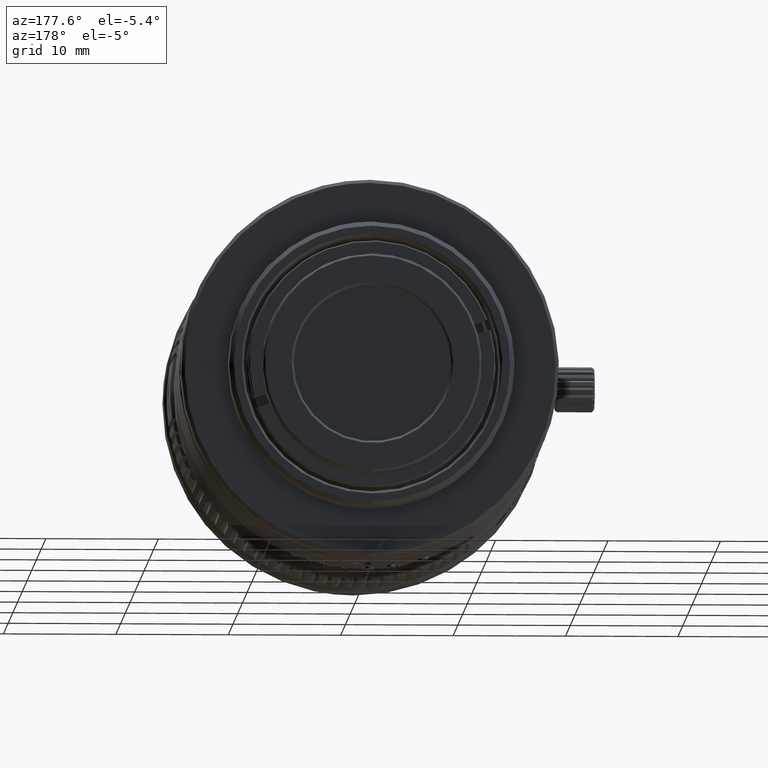
[diagram: clean part render]
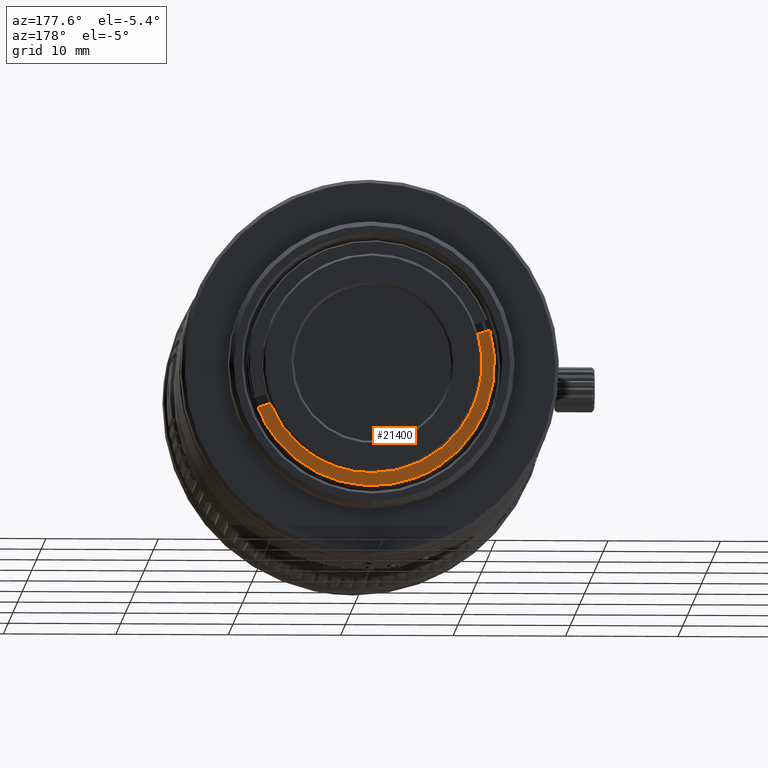
[diagram: same view with one face highlighted and labeled with its STEP entity id]
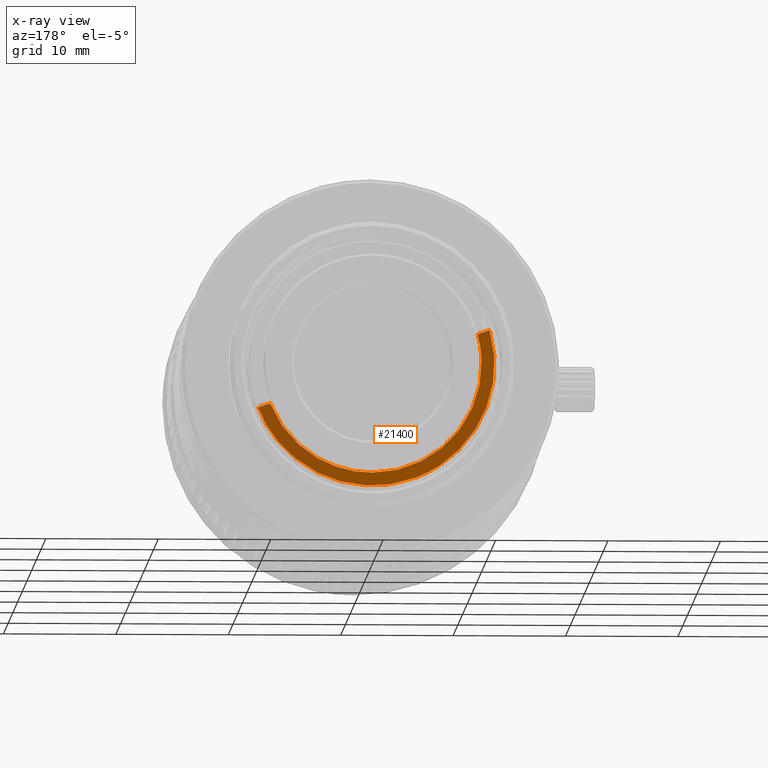
[diagram: x-ray of the same camera — body ghosted, the highlighted face saturated]
A machine part, auxiliary view. The second image highlights one B-rep face of the part: STEP entity #21400.
The next image is the same camera in x-ray: the body ghosted, the highlighted face saturated — about 0% of this face is hidden behind the body in this view.
In plain terms, the highlighted planar face has unit normal (0, -1, 0).
Its self-contained STEP definition (entity closure, byte-faithful):
#152 = ORIENTED_EDGE ( 'NONE', *, *, #44878, .F. ) ;
#742 = ORIENTED_EDGE ( 'NONE', *, *, #52429, .F. ) ;
#1699 = CARTESIAN_POINT ( 'NONE',  ( 6.278458765525088303, 26.44234705645979844, -7.522156299426887571 ) ) ;
#2143 = CARTESIAN_POINT ( 'NONE',  ( -9.720288894856926376, 26.44234705645979844, -1.068153695279417725 ) ) ;
#2158 = CARTESIAN_POINT ( 'NONE',  ( 7.086082948668000370, 26.44234705646000094, -14.37684237892000105 ) ) ;
#2415 = CARTESIAN_POINT ( 'NONE',  ( -9.586710724844072828, 26.44234705645980199, 1.928716151842359450 ) ) ;
#2970 = CARTESIAN_POINT ( 'NONE',  ( -7.322571924300240731, 26.44234705645980554, -6.481119419488264199 ) ) ;
#2994 = CARTESIAN_POINT ( 'NONE',  ( 5.857348800087792462, 26.44234705645951067, -9.296236353577235434 ) ) ;
#3096 = EDGE_CURVE ( 'NONE', #11880, #34706, #41599, .T. ) ;
#3539 = CARTESIAN_POINT ( 'NONE',  ( -8.139471871176422013, 26.44234705645952133, -7.380890391124293792 ) ) ;
#6196 = CARTESIAN_POINT ( 'NONE',  ( -2.960120124351137694, 26.44234705645979489, -9.320013807158732178 ) ) ;
#6847 = CARTESIAN_POINT ( 'NONE',  ( 9.062000991359209223, 26.44234705645995120, -3.597587807489885048 ) ) ;
#7304 = CARTESIAN_POINT ( 'NONE',  ( 9.648381725139151044, 26.44234705645951422, -5.257116642558131936 ) ) ;
#7862 = CARTESIAN_POINT ( 'NONE',  ( 9.425496927680798720, 26.44234705646000805, -3.720719138948073379 ) ) ;
#7938 = EDGE_CURVE ( 'NONE', #42194, #8674, #19050, .T. ) ;
#7975 = CARTESIAN_POINT ( 'NONE',  ( 10.15248880032505951, 26.44234705645985173, -3.966981801861470203 ) ) ;
#8102 = CARTESIAN_POINT ( 'NONE',  ( -10.85707245194149451, 26.44234705645951067, 1.688941408325846050 ) ) ;
#8674 = VERTEX_POINT ( 'NONE', #7975 ) ;
#10541 = CARTESIAN_POINT ( 'NONE',  ( -9.706933850125539109, 26.44234705645979844, 1.183386557936571215 ) ) ;
#11096 = CARTESIAN_POINT ( 'NONE',  ( -3.670305091538421216, 26.44234705645980554, -9.063874946800908106 ) ) ;
#11159 = EDGE_CURVE ( 'NONE', #34706, #48457, #23667, .T. ) ;
#11880 = VERTEX_POINT ( 'NONE', #20692 ) ;
#12069 = B_SPLINE_CURVE_WITH_KNOTS ( 'NONE', 3,
 ( #16056, #37511, #7862, #12759 ),
 .UNSPECIFIED., .F., .F.,
 ( 4, 4 ),
 ( 0.000000000000000000, 1.000000000000000000 ),
 .UNSPECIFIED. ) ;
#12206 = CARTESIAN_POINT ( 'NONE',  ( -2.185194438996142630, 26.44234705645951777, -10.76816932311347941 ) ) ;
#12257 = ORIENTED_EDGE ( 'NONE', *, *, #3096, .F. ) ;
#12759 = CARTESIAN_POINT ( 'NONE',  ( 9.062000991359209223, 26.44234705645995120, -3.597587807489885048 ) ) ;
#14200 = CARTESIAN_POINT ( 'NONE',  ( 8.704376370655916517, 26.44234705645979489, -4.498412148900241547 ) ) ;
#14362 = CARTESIAN_POINT ( 'NONE',  ( -5.646104214394602749, 26.44234705645980554, -7.984139009086296923 ) ) ;
#15205 = CARTESIAN_POINT ( 'NONE',  ( 1.978086469197699815, 26.44234705645951422, -10.80813208782342016 ) ) ;
#15294 = CARTESIAN_POINT ( 'NONE',  ( 4.674716014142784815, 26.44234705645980199, -8.610976138076530617 ) ) ;
#16029 = CARTESIAN_POINT ( 'NONE',  ( 8.895598415468281672, 26.44234705645951777, -6.449563871935762194 ) ) ;
#16056 = CARTESIAN_POINT ( 'NONE',  ( 10.15248880032505951, 26.44234705645985173, -3.966981801861470203 ) ) ;
#17820 = ORIENTED_EDGE ( 'NONE', *, *, #11159, .F. ) ;
#18207 = DIRECTION ( 'NONE',  ( 0.000000000000000000, -1.000000000000000000, 0.000000000000000000 ) ) ;
#18296 = CARTESIAN_POINT ( 'NONE',  ( -2.241623316093095094E-15, 26.44234705645985173, -9.749999999999708677 ) ) ;
#18833 = CARTESIAN_POINT ( 'NONE',  ( 6.998451535983660321, 26.44234705645979489, -6.857372380284909141 ) ) ;
#18994 = CARTESIAN_POINT ( 'NONE',  ( -9.382835467022111686, 26.44234705645995120, 2.650452527170779948 ) ) ;
#19050 = B_SPLINE_CURVE_WITH_KNOTS ( 'NONE', 3,
 ( #44272, #8102, #49434, #44537, #27977, #48615, #3539, #27705, #19292, #12206, #52442, #15205, #52991, #2994, #35862, #16029, #7304, #45342 ),
 .UNSPECIFIED., .F., .F.,
 ( 4, 2, 2, 2, 2, 2, 2, 2, 4 ),
 ( 0.000000000000000000, 0.1250000000000000833, 0.2500000000000001110, 0.3750000000000001110, 0.5000000000000001110, 0.6250000000000001110, 0.7500000000000000000, 0.8750000000000000000, 1.000000000000000000 ),
 .UNSPECIFIED. ) ;
#19292 = CARTESIAN_POINT ( 'NONE',  ( -4.808996349186675623, 26.44234705645951422, -9.879377481449504117 ) ) ;
#19391 = CARTESIAN_POINT ( 'NONE',  ( 8.211489954965681903, 26.44234705645980199, -5.345401068479716855 ) ) ;
#20692 = CARTESIAN_POINT ( 'NONE',  ( 9.062000991359209223, 26.44234705645995120, -3.597587807489885048 ) ) ;
#21400 = ADVANCED_FACE ( 'NONE', ( #27420 ), #27151, .F. ) ;
#22271 = DIRECTION ( 'NONE',  ( 0.000000000000000000, 0.000000000000000000, -1.000000000000000000 ) ) ;
#22362 = B_SPLINE_CURVE_WITH_KNOTS ( 'NONE', 3,
 ( #45086, #35110, #51963, #39729 ),
 .UNSPECIFIED., .F., .F.,
 ( 4, 4 ),
 ( 0.000000000000000000, 1.000000000000000000 ),
 .UNSPECIFIED. ) ;
#22795 = CARTESIAN_POINT ( 'NONE',  ( -5.013328793138525086, 26.44234705645979489, -8.395921803358236346 ) ) ;
#23613 = CARTESIAN_POINT ( 'NONE',  ( -0.7499790105220196512, 26.44234705645979489, -9.749999999999710454 ) ) ;
#23667 = B_SPLINE_CURVE_WITH_KNOTS ( 'NONE', 3,
 ( #43429, #23613, #52138, #6196, #11096, #22795, #14362, #39907, #2970, #52421, #48308, #39365, #39633, #2143, #44519, #10541, #2415, #18994 ),
 .UNSPECIFIED., .F., .F.,
 ( 4, 2, 2, 2, 2, 2, 2, 2, 4 ),
 ( 0.000000000000000000, 0.1250000000000000833, 0.2500000000000001665, 0.3750000000000001665, 0.5000000000000002220, 0.6250000000000002220, 0.7500000000000001110, 0.8750000000000001110, 1.000000000000000000 ),
 .UNSPECIFIED. ) ;
#26008 = CARTESIAN_POINT ( 'NONE',  ( -2.241623316093095094E-15, 26.44234705645985173, -9.749999999999708677 ) ) ;
#27151 = PLANE ( 'NONE',  #42618 ) ;
#27420 = FACE_OUTER_BOUND ( 'NONE', #38108, .T. ) ;
#27705 = CARTESIAN_POINT ( 'NONE',  ( -6.034719692237528577, 26.44234705645952133, -9.182086012643488004 ) ) ;
#27977 = CARTESIAN_POINT ( 'NONE',  ( -10.30126176852156483, 26.44234705645951777, -3.822636692632432442 ) ) ;
#30405 = CARTESIAN_POINT ( 'NONE',  ( -9.382835467022111686, 26.44234705645995120, 2.650452527170779948 ) ) ;
#31880 = CARTESIAN_POINT ( 'NONE',  ( 1.938304988561384778, 26.44234705645980199, -9.604418443337653599 ) ) ;
#34706 = VERTEX_POINT ( 'NONE', #26008 ) ;
#35110 = CARTESIAN_POINT ( 'NONE',  ( -9.746331403343479138, 26.44234705646000805, 2.773583858628607235 ) ) ;
#35862 = CARTESIAN_POINT ( 'NONE',  ( 6.999750554332383246, 26.44234705645951422, -8.469476812919696229 ) ) ;
#37511 = CARTESIAN_POINT ( 'NONE',  ( 9.788992864002883820, 26.44234705646000805, -3.843850470404808650 ) ) ;
#38108 = EDGE_LOOP ( 'NONE', ( #742, #50392, #152, #17820, #12257 ) ) ;
#39365 = CARTESIAN_POINT ( 'NONE',  ( -9.218317318133635752, 26.44234705645980554, -3.263065175324487033 ) ) ;
#39633 = CARTESIAN_POINT ( 'NONE',  ( -9.442578753252085733, 26.44234705645980199, -2.542179184253204660 ) ) ;
#39729 = CARTESIAN_POINT ( 'NONE',  ( -10.47332327598729940, 26.44234705646024963, 3.019846521542655093 ) ) ;
#39907 = CARTESIAN_POINT ( 'NONE',  ( -6.800752996345218016, 26.44234705645980910, -7.026715249597033974 ) ) ;
#41599 = B_SPLINE_CURVE_WITH_KNOTS ( 'NONE', 3,
 ( #6847, #14200, #19391, #18833, #1699, #15294, #43268, #31880, #45099, #18296 ),
 .UNSPECIFIED., .F., .F.,
 ( 4, 2, 2, 2, 4 ),
 ( 0.000000000000000000, 0.2500000000000000000, 0.5000000000000000000, 0.7500000000000000000, 1.000000000000000000 ),
 .UNSPECIFIED. ) ;
#42194 = VERTEX_POINT ( 'NONE', #51765 ) ;
#42618 = AXIS2_PLACEMENT_3D ( 'NONE', #2158, #18207, #22271 ) ;
#43268 = CARTESIAN_POINT ( 'NONE',  ( 3.791176552933886335, 26.44234705645979844, -9.034869130645484248 ) ) ;
#43429 = CARTESIAN_POINT ( 'NONE',  ( -2.241623316093095094E-15, 26.44234705645985173, -9.749999999999708677 ) ) ;
#44272 = CARTESIAN_POINT ( 'NONE',  ( -10.47332327598729940, 26.44234705646024963, 3.019846521542655093 ) ) ;
#44519 = CARTESIAN_POINT ( 'NONE',  ( -9.773724509462887511, 26.44234705645979844, -0.3150836862524405979 ) ) ;
#44537 = CARTESIAN_POINT ( 'NONE',  ( -10.70601693989483216, 26.44234705645951067, -2.471790159003977472 ) ) ;
#44878 = EDGE_CURVE ( 'NONE', #48457, #42194, #22362, .T. ) ;
#45086 = CARTESIAN_POINT ( 'NONE',  ( -9.382835467022111686, 26.44234705645995120, 2.650452527170779948 ) ) ;
#45099 = CARTESIAN_POINT ( 'NONE',  ( 0.9692161076932637176, 26.44234705645979844, -9.749999999999710454 ) ) ;
#45342 = CARTESIAN_POINT ( 'NONE',  ( 10.15248880032505951, 26.44234705645985173, -3.966981801861470203 ) ) ;
#48308 = CARTESIAN_POINT ( 'NONE',  ( -8.610829336042298721, 26.44234705645980199, -4.634499612878533625 ) ) ;
#48457 = VERTEX_POINT ( 'NONE', #30405 ) ;
#48615 = CARTESIAN_POINT ( 'NONE',  ( -9.017764875923946377, 26.44234705645951777, -6.277615944768825784 ) ) ;
#49434 = CARTESIAN_POINT ( 'NONE',  ( -10.98397086859722904, 26.44234705645951422, 0.2844806940231379144 ) ) ;
#50392 = ORIENTED_EDGE ( 'NONE', *, *, #7938, .F. ) ;
#51765 = CARTESIAN_POINT ( 'NONE',  ( -10.47332327598729940, 26.44234705646024963, 3.019846521542655093 ) ) ;
#51963 = CARTESIAN_POINT ( 'NONE',  ( -10.10982733966507574, 26.44234705646000805, 2.896715190085761282 ) ) ;
#52138 = CARTESIAN_POINT ( 'NONE',  ( -1.499922665347382500, 26.44234705645979489, -9.663084420318140744 ) ) ;
#52421 = CARTESIAN_POINT ( 'NONE',  ( -8.227631427418668153, 26.44234705645979489, -5.284983406858586363 ) ) ;
#52429 = EDGE_CURVE ( 'NONE', #8674, #11880, #12069, .T. ) ;
#52442 = CARTESIAN_POINT ( 'NONE',  ( -0.7880331651945428062, 26.44234705645951422, -10.95935897021422711 ) ) ;
#52991 = CARTESIAN_POINT ( 'NONE',  ( 3.346077781512675653, 26.44234705645952133, -10.46576842795254869 ) ) ;